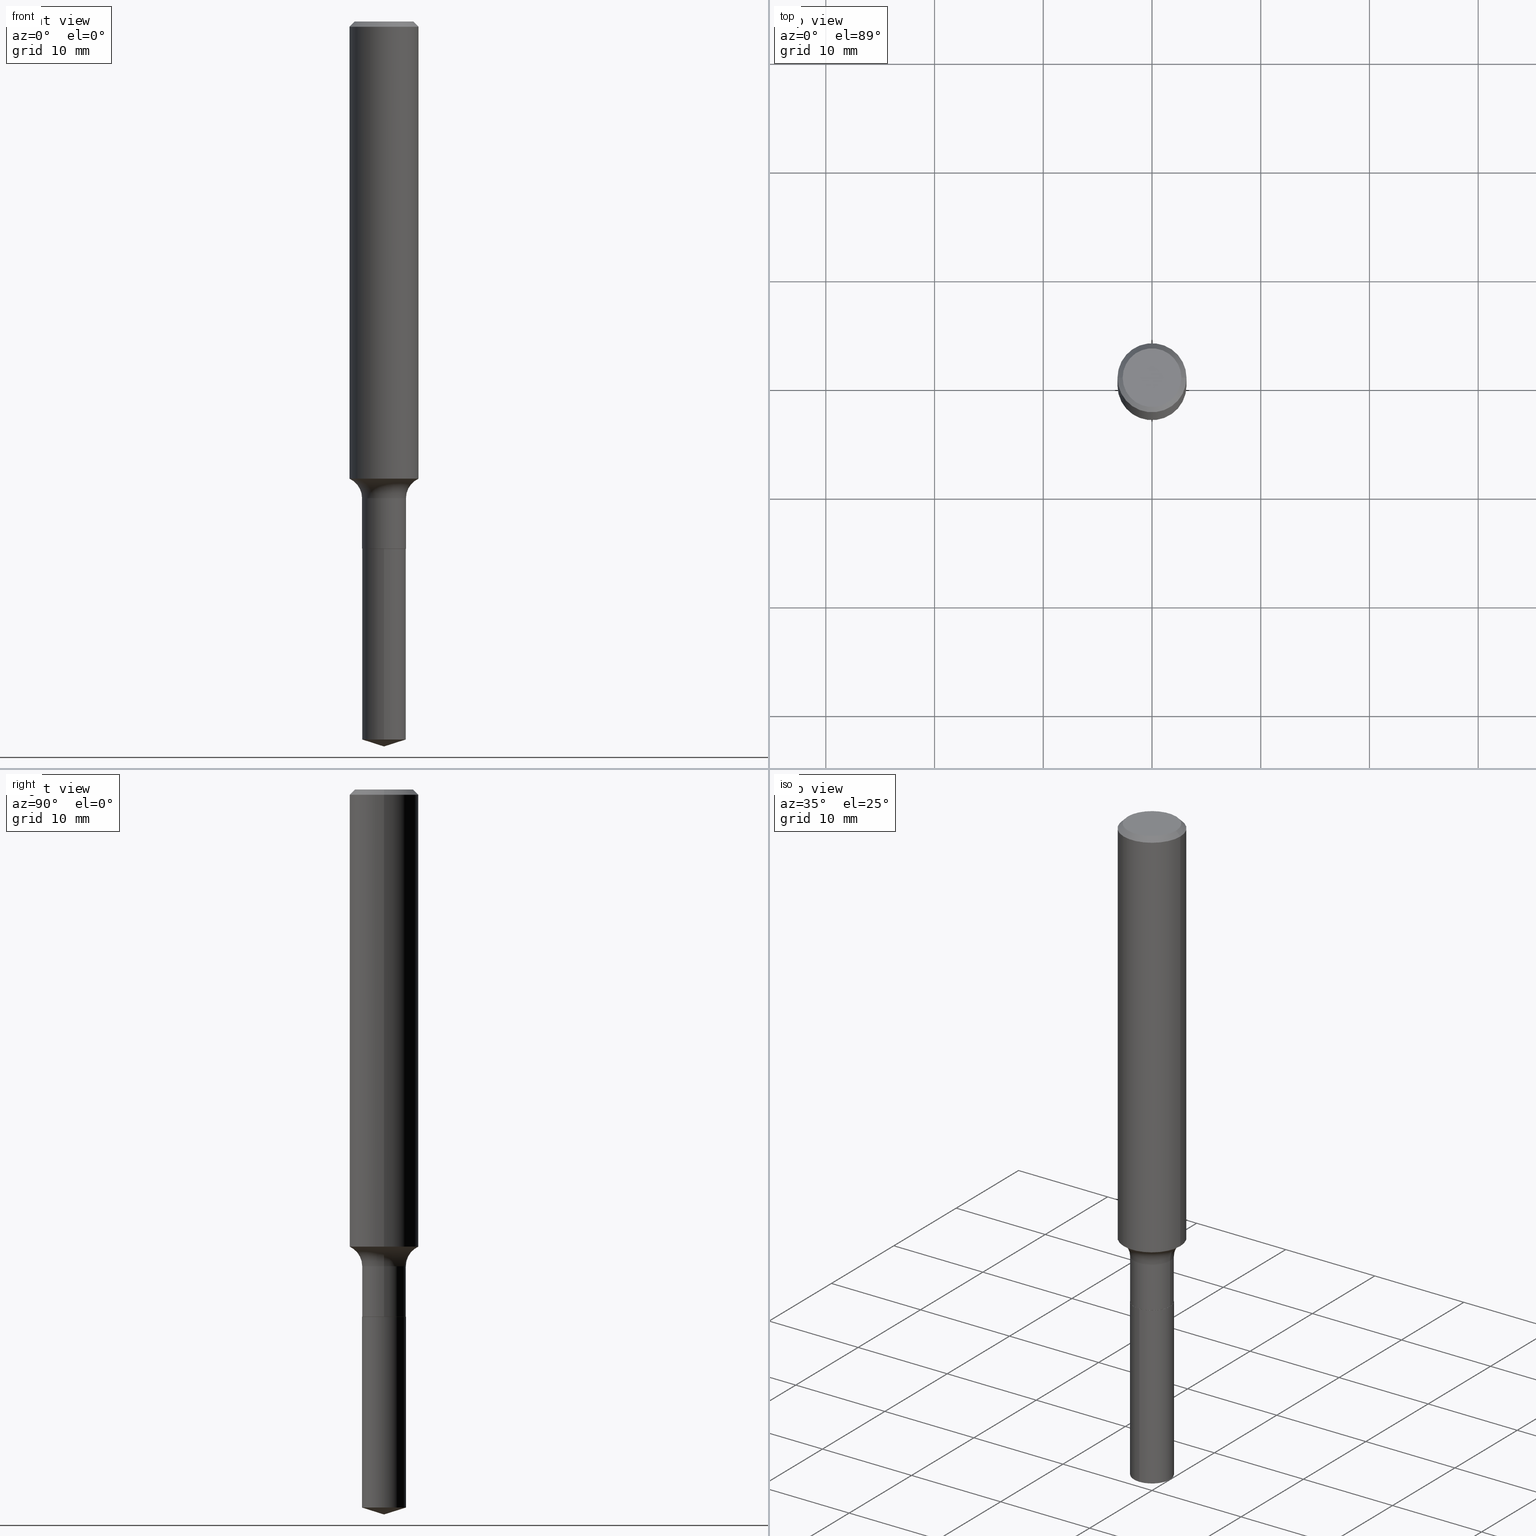
[diagram: canonical four-view strip — front | top / right | iso, engineering-drawing reading convention]
A machine part, canonical four-view strip (front | top / right | iso — engineering-drawing reading convention). The complete STEP part file that produces these views, byte-faithful:
ISO-10303-21;
HEADER;
FILE_DESCRIPTION (( 'STEP AP203' ),
    '1' );
FILE_NAME ('51335.STEP',
    '2024-04-19T12:48:40',
    ( '' ),
    ( '' ),
    'SwSTEP 2.0',
    'SolidWorks 2023',
    '' );
FILE_SCHEMA (( 'CONFIG_CONTROL_DESIGN' ));
ENDSEC;

DATA;
#1 = ORIENTED_EDGE ( 'NONE', *, *, #146, .F. ) ;
#2 = AXIS2_PLACEMENT_3D ( 'NONE', #81, #200, #87 ) ;
#3 = DIRECTION ( 'NONE',  ( 2.445393287563249145E-29, -3.491589485807941180E-15, -1.000000000000000000 ) ) ;
#4 = LOCAL_TIME ( 8, 48, 40.00000000000000000, #197 ) ;
#5 = DIRECTION ( 'NONE',  ( -2.445468806185136597E-29, 3.491481338843145583E-15, 1.000000000000000000 ) ) ;
#6 = APPROVAL ( #31, 'UNSPECIFIED' ) ;
#7 = CALENDAR_DATE ( 2024, 19, 4 ) ;
#8 = DIRECTION ( 'NONE',  ( 2.438088387897960049E-29, -3.491481338843145188E-15, -1.000000000000000000 ) ) ;
#9 = LINE ( 'NONE', #315, #55 ) ;
#10 = CIRCLE ( 'NONE', #396, 0.07950000000000000122 ) ;
#11 = PERSON_AND_ORGANIZATION ( #33, #42 ) ;
#12 = CARTESIAN_POINT ( 'NONE',  ( -1.591006383764329968E-46, 2.271535455632767580E-32, 6.505936120470314915E-18 ) ) ;
#13 = ADVANCED_FACE ( 'NONE', ( #192 ), #96, .T. ) ;
#14 = CARTESIAN_POINT ( 'NONE',  ( -8.985602473711498947E-28, 1.282989370368745665E-13, 36.74507874015748143 ) ) ;
#15 = CC_DESIGN_PERSON_AND_ORGANIZATION_ASSIGNMENT ( #313, #164, ( #336 ) ) ;
#16 = DIRECTION ( 'NONE',  ( 1.000000000000000000, -6.982962677686267499E-15, 0.000000000000000000 ) ) ;
#17 = EDGE_LOOP ( 'NONE', ( #1, #227, #136, #366 ) ) ;
#18 = CIRCLE ( 'NONE', #278, 0.07950000000000000122 ) ;
#19 = CIRCLE ( 'NONE', #421, 0.07950000000000000122 ) ;
#20 = DIRECTION ( 'NONE',  ( -2.445468806185136597E-29, 3.491481338843145583E-15, 1.000000000000000000 ) ) ;
#21 = ORIENTED_EDGE ( 'NONE', *, *, #449, .T. ) ;
#22 = ADVANCED_FACE ( 'NONE', ( #371 ), #486, .F. ) ;
#23 = CARTESIAN_POINT ( 'NONE',  ( 4.221123706356164008E-29, -6.026645938977152856E-15, -1.726099999999999968 ) ) ;
#24 = ORIENTED_EDGE ( 'NONE', *, *, #428, .T. ) ;
#25 = CARTESIAN_POINT ( 'NONE',  ( 0.1062499999999999972, -8.259777185439879685E-16, 6.505936120475796882E-18 ) ) ;
#26 = EDGE_LOOP ( 'NONE', ( #430, #216, #320, #37 ) ) ;
#27 = AXIS2_PLACEMENT_3D ( 'NONE', #335, #459, #382 ) ;
#28 = PLANE ( 'NONE',  #154 ) ;
#29 = ADVANCED_FACE ( 'NONE', ( #76 ), #28, .F. ) ;
#30 =( NAMED_UNIT ( * ) PLANE_ANGLE_UNIT ( ) SI_UNIT ( $, .RADIAN. ) );
#31 = APPROVAL_STATUS ( 'not_yet_approved' ) ;
#32 = LINE ( 'NONE', #485, #326 ) ;
#33 = PERSON ( 'UNSPECIFIED', 'UNSPECIFIED', 'UNSPECIFIED', ('UNSPECIFIED'), ('UNSPECIFIED'), ('UNSPECIFIED') ) ;
#34 = ORIENTED_EDGE ( 'NONE', *, *, #251, .T. ) ;
#35 = LINE ( 'NONE', #180, #328 ) ;
#36 = EDGE_CURVE ( 'NONE', #260, #167, #32, .T. ) ;
#37 = ORIENTED_EDGE ( 'NONE', *, *, #439, .F. ) ;
#38 = COORDINATED_UNIVERSAL_TIME_OFFSET ( 5, 0, .BEHIND. ) ;
#39 = DIRECTION ( 'NONE',  ( -2.445468806185136597E-29, 3.491481338843145583E-15, 1.000000000000000000 ) ) ;
#40 = PERSON_AND_ORGANIZATION ( #33, #42 ) ;
#41 = CARTESIAN_POINT ( 'NONE',  ( 6.419157379853528899E-29, -9.165422400245844660E-15, -2.625000000000000000 ) ) ;
#42 = ORGANIZATION ( 'UNSPECIFIED', 'UNSPECIFIED', '' ) ;
#43 = EDGE_CURVE ( 'NONE', #108, #359, #264, .T. ) ;
#44 = APPROVAL_STATUS ( 'not_yet_approved' ) ;
#45 = CYLINDRICAL_SURFACE ( 'NONE', #334, 0.07950000000000000122 ) ;
#46 = CARTESIAN_POINT ( 'NONE',  ( 4.047723757608193363E-29, -5.779076767913244997E-15, -1.655193371254867873 ) ) ;
#47 = EDGE_CURVE ( 'NONE', #489, #303, #386, .T. ) ;
#48 = DIRECTION ( 'NONE',  ( 1.000000000000000000, -6.982962677686271444E-15, 0.000000000000000000 ) ) ;
#49 = AXIS2_PLACEMENT_3D ( 'NONE', #14, #51, #95 ) ;
#50 = DIRECTION ( 'NONE',  ( -2.445468806185136877E-29, 3.491481338843145188E-15, 1.000000000000000000 ) ) ;
#51 = DIRECTION ( 'NONE',  ( -2.445393287563249425E-29, 3.491589485807941180E-15, 1.000000000000000000 ) ) ;
#52 = VERTEX_POINT ( 'NONE', #106 ) ;
#53 = DIRECTION ( 'NONE',  ( -2.445468806185136597E-29, 3.491481338843145583E-15, 1.000000000000000000 ) ) ;
#54 = ORIENTED_EDGE ( 'NONE', *, *, #414, .T. ) ;
#55 = VECTOR ( 'NONE', #162, 39.37007874015748143 ) ;
#56 = LOCAL_TIME ( 8, 48, 40.00000000000000000, #492 ) ;
#57 = EDGE_CURVE ( 'NONE', #231, #260, #18, .T. ) ;
#58 = DIRECTION ( 'NONE',  ( -2.445468806185136597E-29, 3.491481338843145583E-15, 1.000000000000000000 ) ) ;
#59 = EDGE_LOOP ( 'NONE', ( #363, #482 ) ) ;
#60 = FACE_OUTER_BOUND ( 'NONE', #26, .T. ) ;
#61 = ORIENTED_EDGE ( 'NONE', *, *, #439, .T. ) ;
#62 = LINE ( 'NONE', #74, #312 ) ;
#63 = ADVANCED_FACE ( 'NONE', ( #186 ), #356, .T. ) ;
#64 = ORIENTED_EDGE ( 'NONE', *, *, #152, .T. ) ;
#65 = AXIS2_PLACEMENT_3D ( 'NONE', #12, #346, #85 ) ;
#66 = CONICAL_SURFACE ( 'NONE', #305, 0.07900000000000000078, 0.7853981633975507526 ) ;
#67 = CARTESIAN_POINT ( 'NONE',  ( 0.07900000000000000078, -7.216891927388781321E-15, -1.909000000000000030 ) ) ;
#68 = ORIENTED_EDGE ( 'NONE', *, *, #256, .T. ) ;
#69 = PERSON_AND_ORGANIZATION ( #33, #42 ) ;
#70 = CARTESIAN_POINT ( 'NONE',  ( 4.667177216604333684E-29, -6.663492135182144179E-15, -1.908500000000000085 ) ) ;
#71 = CARTESIAN_POINT ( 'NONE',  ( 4.585254011597163874E-31, -6.546527510330944066E-17, -0.01875000000000013461 ) ) ;
#72 = EDGE_LOOP ( 'NONE', ( #212, #24, #147, #325 ) ) ;
#73 = AXIS2_PLACEMENT_3D ( 'NONE', #342, #383, #165 ) ;
#74 = CARTESIAN_POINT ( 'NONE',  ( -0.1250000000000000000, 8.074050596074738982E-16, -0.01875000000000013461 ) ) ;
#75 = DIRECTION ( 'NONE',  ( 2.445468806185136597E-29, -3.491481338843145583E-15, -1.000000000000000000 ) ) ;
#76 = FACE_OUTER_BOUND ( 'NONE', #448, .T. ) ;
#77 = CARTESIAN_POINT ( 'NONE',  ( 6.419448238266510425E-29, -9.165009495134254950E-15, -2.625000000000000000 ) ) ;
#78 = EDGE_CURVE ( 'NONE', #250, #332, #450, .T. ) ;
#79 = CIRCLE ( 'NONE', #187, 0.07949999999999998734 ) ;
#80 = CC_DESIGN_SECURITY_CLASSIFICATION ( #336, ( #387 ) ) ;
#81 = CARTESIAN_POINT ( 'NONE',  ( 0.1574999999999999456, -7.126462560712738759E-15, -1.726099999999999968 ) ) ;
#82 = APPLICATION_CONTEXT ( 'configuration controlled 3d designs of mechanical parts and assemblies' ) ;
#83 = DATE_TIME_ROLE ( 'creation_date' ) ;
#84 = CARTESIAN_POINT ( 'NONE',  ( -0.1062499999999999972, 7.746724220558198188E-16, 6.505936120465012444E-18 ) ) ;
#85 = DIRECTION ( 'NONE',  ( 1.000000000000000000, -6.982962677686266711E-15, 4.875930095424100059E-29 ) ) ;
#86 = ADVANCED_FACE ( 'NONE', ( #273 ), #240, .F. ) ;
#87 = DIRECTION ( 'NONE',  ( 1.000000000000000000, -6.982962677686264344E-15, 0.000000000000000000 ) ) ;
#88 = AXIS2_PLACEMENT_3D ( 'NONE', #131, #246, #90 ) ;
#89 = CC_DESIGN_APPROVAL ( #109, ( #387 ) ) ;
#90 = DIRECTION ( 'NONE',  ( -6.982962677686265922E-15, -1.000000000000000000, 3.436286784483350005E-15 ) ) ;
#91 = EDGE_LOOP ( 'NONE', ( #394, #170, #21, #54 ) ) ;
#92 = DIRECTION ( 'NONE',  ( 1.000000000000000000, -6.982962677686267499E-15, 4.876176775795935793E-29 ) ) ;
#93 = EDGE_CURVE ( 'NONE', #247, #167, #468, .T. ) ;
#94 = ORIENTED_EDGE ( 'NONE', *, *, #57, .F. ) ;
#95 = DIRECTION ( 'NONE',  ( -6.982962677686265922E-15, -1.000000000000000000, 3.500519750498788051E-15 ) ) ;
#96 = CONICAL_SURFACE ( 'NONE', #395, 0.1250000000000000000, 0.7853981633974447263 ) ;
#97 = ORIENTED_EDGE ( 'NONE', *, *, #193, .T. ) ;
#98 = AXIS2_PLACEMENT_3D ( 'NONE', #284, #433, #322 ) ;
#99 = CIRCLE ( 'NONE', #211, 0.1250000000000000000 ) ;
#100 = CARTESIAN_POINT ( 'NONE',  ( 0.000000000000000000, 0.000000000000000000, 0.000000000000000000 ) ) ;
#101 = VERTEX_POINT ( 'NONE', #124 ) ;
#102 = DIRECTION ( 'NONE',  ( 0.7071067811866199593, -2.468850131083015945E-15, 0.7071067811864750752 ) ) ;
#103 = ORIENTED_EDGE ( 'NONE', *, *, #168, .T. ) ;
#104 = DIRECTION ( 'NONE',  ( -6.659769872151617100E-15, -0.9537169507482246011, 0.3007057995042803356 ) ) ;
#105 = CIRCLE ( 'NONE', #98, 0.1250000000000001943 ) ;
#106 = CARTESIAN_POINT ( 'NONE',  ( -5.551455328760114122E-16, -0.07950000000000666256, -1.908999999999999808 ) ) ;
#107 = LINE ( 'NONE', #67, #381 ) ;
#108 = VERTEX_POINT ( 'NONE', #41 ) ;
#109 = APPROVAL ( #44, 'UNSPECIFIED' ) ;
#110 = LENGTH_MEASURE_WITH_UNIT ( LENGTH_MEASURE( 0.02539999999999999897 ), #365 );
#111 = VERTEX_POINT ( 'NONE', #84 ) ;
#112 = AXIS2_PLACEMENT_3D ( 'NONE', #267, #39, #48 ) ;
#113 = AXIS2_PLACEMENT_3D ( 'NONE', #319, #20, #173 ) ;
#114 = CARTESIAN_POINT ( 'NONE',  ( 4.221123706356164008E-29, -6.026645938977152856E-15, -1.726099999999999968 ) ) ;
#115 = MANIFOLD_SOLID_BREP ( 'Body-Move/Copy2[1]', #233 ) ;
#116 = ADVANCED_FACE ( 'NONE', ( #423 ), #45, .T. ) ;
#117 = PERSON_AND_ORGANIZATION_ROLE ( 'creator' ) ;
#118 = DIRECTION ( 'NONE',  ( -1.000000000000000000, 6.982962677686265922E-15, -4.876176775795935793E-29 ) ) ;
#119 = PRODUCT_RELATED_PRODUCT_CATEGORY ( 'detail', '', ( #331 ) ) ;
#120 = DIRECTION ( 'NONE',  ( -2.445468806185136877E-29, 3.491481338843145188E-15, 1.000000000000000000 ) ) ;
#121 = CLOSED_SHELL ( 'NONE', ( #391, #223, #408, #22, #116, #384, #475, #351, #13, #130, #29, #177 ) ) ;
#122 = APPROVAL_DATE_TIME ( #422, #6 ) ;
#123 = CIRCLE ( 'NONE', #234, 0.07950000000000000122 ) ;
#124 = CARTESIAN_POINT ( 'NONE',  ( 5.648814749293430611E-16, 0.07949999999999091127, -2.599933746284121217 ) ) ;
#125 = DIRECTION ( 'NONE',  ( -2.445393287563249425E-29, 3.491589485807941180E-15, 1.000000000000000000 ) ) ;
#126 = DIRECTION ( 'NONE',  ( -1.000000000000000000, 6.982962677686266711E-15, 0.000000000000000000 ) ) ;
#127 = CARTESIAN_POINT ( 'NONE',  ( 0.1250000000000001110, -8.728703347107841277E-16, 6.095220969744924646E-30 ) ) ;
#128 = AXIS2_PLACEMENT_3D ( 'NONE', #100, #431, #390 ) ;
#129 = VECTOR ( 'NONE', #298, 39.37007874015748143 ) ;
#130 = ADVANCED_FACE ( 'NONE', ( #350 ), #457, .F. ) ;
#131 = CARTESIAN_POINT ( 'NONE',  ( 4.668399951007425925E-29, -6.665237875851565683E-15, -1.909000000000000030 ) ) ;
#132 = ORIENTED_EDGE ( 'NONE', *, *, #338, .F. ) ;
#133 = DIRECTION ( 'NONE',  ( 1.000000000000000000, -6.982962677686266711E-15, 0.000000000000000000 ) ) ;
#134 = ORIENTED_EDGE ( 'NONE', *, *, #138, .T. ) ;
#135 = CARTESIAN_POINT ( 'NONE',  ( -0.1574999999999999456, -4.907541130154996042E-15, -1.726099999999999968 ) ) ;
#136 = ORIENTED_EDGE ( 'NONE', *, *, #36, .T. ) ;
#137 = VECTOR ( 'NONE', #311, 39.37007874015748143 ) ;
#138 = EDGE_CURVE ( 'NONE', #332, #167, #304, .T. ) ;
#139 = LOCAL_TIME ( 8, 48, 40.00000000000000000, #417 ) ;
#140 = DIRECTION ( 'NONE',  ( 0.7071067811865450192, -7.319954787623246579E-15, -0.7071067811865500152 ) ) ;
#141 = APPLICATION_PROTOCOL_DEFINITION ( 'international standard', 'config_control_design', 1994, #82 ) ;
#142 = DIRECTION ( 'NONE',  ( 1.000000000000000000, -6.982962677686268288E-15, 4.883557194083114022E-29 ) ) ;
#143 = FACE_OUTER_BOUND ( 'NONE', #209, .T. ) ;
#144 = CARTESIAN_POINT ( 'NONE',  ( 4.668399951007425925E-29, -6.665237875851565683E-15, -1.909000000000000030 ) ) ;
#145 = CARTESIAN_POINT ( 'NONE',  ( 4.667177216604333684E-29, -6.663492135182144179E-15, -1.908500000000000085 ) ) ;
#146 = EDGE_CURVE ( 'NONE', #231, #247, #202, .T. ) ;
#147 = ORIENTED_EDGE ( 'NONE', *, *, #444, .F. ) ;
#148 = CARTESIAN_POINT ( 'NONE',  ( 0.000000000000000000, 0.000000000000000000, 0.000000000000000000 ) ) ;
#149 = CARTESIAN_POINT ( 'NONE',  ( 6.419157379853528899E-29, -9.165422400245844660E-15, -2.625000000000000000 ) ) ;
#150 = CALENDAR_DATE ( 2024, 19, 4 ) ;
#151 = EDGE_LOOP ( 'NONE', ( #413, #434, #438 ) ) ;
#152 = EDGE_CURVE ( 'NONE', #402, #111, #379, .T. ) ;
#153 = UNCERTAINTY_MEASURE_WITH_UNIT (LENGTH_MEASURE( 1.000000000000000082E-05 ), #226, 'distance_accuracy_value', 'NONE');
#154 = AXIS2_PLACEMENT_3D ( 'NONE', #295, #442, #333 ) ;
#155 = APPROVAL_ROLE ( '' ) ;
#156 = LINE ( 'NONE', #77, #487 ) ;
#157 = PERSON_AND_ORGANIZATION_ROLE ( 'creator' ) ;
#158 = CARTESIAN_POINT ( 'NONE',  ( 4.585254011597163874E-31, -6.546527510330944066E-17, -0.01875000000000013461 ) ) ;
#159 = PERSON_AND_ORGANIZATION_ROLE ( 'design_supplier' ) ;
#160 = CARTESIAN_POINT ( 'NONE',  ( 5.648814749293261992E-16, 0.07949999999999333988, -1.909000000000000252 ) ) ;
#161 = AXIS2_PLACEMENT_3D ( 'NONE', #148, #406, #189 ) ;
#162 = DIRECTION ( 'NONE',  ( -2.445468806185136877E-29, 3.491481338843145188E-15, 1.000000000000000000 ) ) ;
#163 = EDGE_CURVE ( 'NONE', #101, #467, #345, .T. ) ;
#164 = PERSON_AND_ORGANIZATION_ROLE ( 'classification_officer' ) ;
#165 = DIRECTION ( 'NONE',  ( 1.000000000000000000, -6.982962677686267499E-15, 0.000000000000000000 ) ) ;
#166 = CARTESIAN_POINT ( 'NONE',  ( 0.000000000000000000, 0.000000000000000000, 0.000000000000000000 ) ) ;
#167 = VERTEX_POINT ( 'NONE', #198 ) ;
#168 = EDGE_CURVE ( 'NONE', #250, #253, #9, .T. ) ;
#169 = CYLINDRICAL_SURFACE ( 'NONE', #235, 0.07950000000000000122 ) ;
#170 = ORIENTED_EDGE ( 'NONE', *, *, #369, .F. ) ;
#171 = LOCAL_TIME ( 8, 48, 40.00000000000000000, #310 ) ;
#172 = CC_DESIGN_DATE_AND_TIME_ASSIGNMENT ( #194, #199, ( #336 ) ) ;
#173 = DIRECTION ( 'NONE',  ( 1.000000000000000000, -6.982962677686266711E-15, 4.876176775795935232E-29 ) ) ;
#174 = ORIENTED_EDGE ( 'NONE', *, *, #460, .T. ) ;
#175 = DIRECTION ( 'NONE',  ( -2.445468806185136597E-29, 3.491481338843145583E-15, 1.000000000000000000 ) ) ;
#176 = CYLINDRICAL_SURFACE ( 'NONE', #113, 0.1250000000000001110 ) ;
#177 = ADVANCED_FACE ( 'NONE', ( #314 ), #270, .T. ) ;
#178 = EDGE_LOOP ( 'NONE', ( #452, #339, #68, #290 ) ) ;
#179 = AXIS2_PLACEMENT_3D ( 'NONE', #114, #183, #142 ) ;
#180 = CARTESIAN_POINT ( 'NONE',  ( -5.551455328760114122E-16, -0.07950000000000666256, -1.908999999999999808 ) ) ;
#181 = ORIENTED_EDGE ( 'NONE', *, *, #465, .F. ) ;
#182 = CARTESIAN_POINT ( 'NONE',  ( 4.668399951007425925E-29, -6.665237875851565683E-15, -1.909000000000000030 ) ) ;
#183 = DIRECTION ( 'NONE',  ( -2.445468806185136597E-29, 3.491481338843145583E-15, 1.000000000000000000 ) ) ;
#184 = PRODUCT_DEFINITION ( 'UNKNOWN', '', #387, #454 ) ;
#185 = PERSON_AND_ORGANIZATION ( #33, #42 ) ;
#186 = FACE_OUTER_BOUND ( 'NONE', #302, .T. ) ;
#187 = AXIS2_PLACEMENT_3D ( 'NONE', #23, #53, #16 ) ;
#188 = AXIS2_PLACEMENT_3D ( 'NONE', #182, #481, #224 ) ;
#189 = DIRECTION ( 'NONE',  ( 1.000000000000000000, 0.000000000000000000, 0.000000000000000000 ) ) ;
#190 = ORIENTED_EDGE ( 'NONE', *, *, #269, .F. ) ;
#191 =( NAMED_UNIT ( * ) SI_UNIT ( $, .STERADIAN. ) SOLID_ANGLE_UNIT ( ) );
#192 = FACE_OUTER_BOUND ( 'NONE', #91, .T. ) ;
#193 = EDGE_CURVE ( 'NONE', #108, #101, #156, .T. ) ;
#194 = DATE_AND_TIME ( #347, #171 ) ;
#195 = CARTESIAN_POINT ( 'NONE',  ( 4.668399951007425925E-29, -6.665237875851565683E-15, -1.909000000000000030 ) ) ;
#196 = CIRCLE ( 'NONE', #258, 0.1062499999999999972 ) ;
#197 = COORDINATED_UNIVERSAL_TIME_OFFSET ( 5, 0, .BEHIND. ) ;
#198 = CARTESIAN_POINT ( 'NONE',  ( 0.07949999999999998734, -6.581791471853211501E-15, -1.726099999999999968 ) ) ;
#199 = DATE_TIME_ROLE ( 'classification_date' ) ;
#200 = DIRECTION ( 'NONE',  ( -6.982962677686266711E-15, -1.000000000000000000, 3.491481338843145583E-15 ) ) ;
#201 = CC_DESIGN_PERSON_AND_ORGANIZATION_ASSIGNMENT ( #185, #490, ( #331 ) ) ;
#202 = LINE ( 'NONE', #348, #370 ) ;
#203 = CALENDAR_DATE ( 2024, 19, 4 ) ;
#204 = VECTOR ( 'NONE', #50, 39.37007874015748143 ) ;
#205 = FACE_OUTER_BOUND ( 'NONE', #292, .T. ) ;
#206 = FACE_OUTER_BOUND ( 'NONE', #151, .T. ) ;
#207 = EDGE_CURVE ( 'NONE', #52, #467, #343, .T. ) ;
#208 = LINE ( 'NONE', #127, #204 ) ;
#209 = EDGE_LOOP ( 'NONE', ( #416, #432, #134, #286 ) ) ;
#210 = CARTESIAN_POINT ( 'NONE',  ( 6.358004696321542877E-29, -9.077694879767091287E-15, -2.599933746284120328 ) ) ;
#211 = AXIS2_PLACEMENT_3D ( 'NONE', #71, #443, #261 ) ;
#212 = ORIENTED_EDGE ( 'NONE', *, *, #465, .T. ) ;
#213 = DIRECTION ( 'NONE',  ( 1.000000000000000000, -6.982962677686266711E-15, 4.875930095424100059E-29 ) ) ;
#214 = ORIENTED_EDGE ( 'NONE', *, *, #460, .F. ) ;
#215 = DIRECTION ( 'NONE',  ( -2.445468806185136597E-29, 3.491481338843145583E-15, 1.000000000000000000 ) ) ;
#216 = ORIENTED_EDGE ( 'NONE', *, *, #163, .T. ) ;
#217 = CARTESIAN_POINT ( 'NONE',  ( -0.07900000000000000078, -6.101259887426974836E-15, -1.909000000000000030 ) ) ;
#218 = EDGE_LOOP ( 'NONE', ( #254, #103, #214, #361 ) ) ;
#219 = AXIS2_PLACEMENT_3D ( 'NONE', #158, #309, #126 ) ;
#220 = CIRCLE ( 'NONE', #349, 0.1250000000000000000 ) ;
#221 = APPLICATION_CONTEXT ( 'configuration controlled 3d designs of mechanical parts and assemblies' ) ;
#222 = ORIENTED_EDGE ( 'NONE', *, *, #344, .T. ) ;
#223 = ADVANCED_FACE ( 'NONE', ( #205 ), #248, .T. ) ;
#224 = DIRECTION ( 'NONE',  ( 1.000000000000000000, -6.982962677686271444E-15, 0.000000000000000000 ) ) ;
#225 = DIRECTION ( 'NONE',  ( -2.445468806185136597E-29, 3.491481338843145583E-15, 1.000000000000000000 ) ) ;
#226 =( CONVERSION_BASED_UNIT ( 'INCH', #110 ) LENGTH_UNIT ( ) NAMED_UNIT ( #451 ) );
#227 = ORIENTED_EDGE ( 'NONE', *, *, #57, .T. ) ;
#228 = ADVANCED_FACE ( 'NONE', ( #277 ), #426, .T. ) ;
#229 = DIRECTION ( 'NONE',  ( 1.000000000000000000, -6.982962677686265922E-15, 0.000000000000000000 ) ) ;
#230 = ORIENTED_EDGE ( 'NONE', *, *, #36, .F. ) ;
#231 = VERTEX_POINT ( 'NONE', #268 ) ;
#232 = CARTESIAN_POINT ( 'NONE',  ( 0.000000000000000000, 0.000000000000000000, 0.000000000000000000 ) ) ;
#233 = CLOSED_SHELL ( 'NONE', ( #285, #63, #355, #228, #86 ) ) ;
#234 = AXIS2_PLACEMENT_3D ( 'NONE', #291, #280, #470 ) ;
#235 = AXIS2_PLACEMENT_3D ( 'NONE', #166, #175, #92 ) ;
#236 = CARTESIAN_POINT ( 'NONE',  ( -0.07949999999999998734, -5.780187562150368763E-15, -1.726099999999999968 ) ) ;
#237 = CC_DESIGN_DATE_AND_TIME_ASSIGNMENT ( #274, #83, ( #184 ) ) ;
#238 = SHAPE_DEFINITION_REPRESENTATION ( #296, #239 ) ;
#239 = ADVANCED_BREP_SHAPE_REPRESENTATION ( '51335', ( #115, #283, #161 ), #478 ) ;
#240 = PLANE ( 'NONE',  #420 ) ;
#241 = DIRECTION ( 'NONE',  ( 6.982962677686265922E-15, 1.000000000000000000, -3.491589485807941180E-15 ) ) ;
#242 = AXIS2_PLACEMENT_3D ( 'NONE', #46, #5, #378 ) ;
#243 = DIRECTION ( 'NONE',  ( -2.445393287563249425E-29, 3.491589485807941180E-15, 1.000000000000000000 ) ) ;
#244 = DIRECTION ( 'NONE',  ( -2.445393287563249425E-29, 3.491589485807941180E-15, 1.000000000000000000 ) ) ;
#245 = ORIENTED_EDGE ( 'NONE', *, *, #146, .T. ) ;
#246 = DIRECTION ( 'NONE',  ( -2.445393287563249425E-29, 3.491589485807941180E-15, 1.000000000000000000 ) ) ;
#247 = VERTEX_POINT ( 'NONE', #236 ) ;
#248 = CONICAL_SURFACE ( 'NONE', #219, 0.1250000000000000000, 0.7853981633974447263 ) ;
#249 = DIRECTION ( 'NONE',  ( -2.445468806185136597E-29, 3.491481338843145583E-15, 1.000000000000000000 ) ) ;
#250 = VERTEX_POINT ( 'NONE', #419 ) ;
#251 = EDGE_CURVE ( 'NONE', #402, #480, #282, .T. ) ;
#252 = CARTESIAN_POINT ( 'NONE',  ( -0.1250000000000000000, -2.034092601808150261E-15, -0.01875000000000013461 ) ) ;
#253 = VERTEX_POINT ( 'NONE', #252 ) ;
#254 = ORIENTED_EDGE ( 'NONE', *, *, #276, .T. ) ;
#255 = DIRECTION ( 'NONE',  ( -2.445468806185136597E-29, 3.491481338843145583E-15, 1.000000000000000000 ) ) ;
#256 = EDGE_CURVE ( 'NONE', #332, #480, #208, .T. ) ;
#257 = ORIENTED_EDGE ( 'NONE', *, *, #47, .T. ) ;
#258 = AXIS2_PLACEMENT_3D ( 'NONE', #429, #249, #213 ) ;
#259 = LOCAL_TIME ( 8, 48, 40.00000000000000000, #38 ) ;
#260 = VERTEX_POINT ( 'NONE', #360 ) ;
#261 = DIRECTION ( 'NONE',  ( 1.000000000000000000, -6.982962677686266711E-15, 0.000000000000000000 ) ) ;
#262 = ORIENTED_EDGE ( 'NONE', *, *, #93, .T. ) ;
#263 = APPLICATION_PROTOCOL_DEFINITION ( 'international standard', 'config_control_design', 1994, #221 ) ;
#264 = LINE ( 'NONE', #149, #427 ) ;
#265 = ORIENTED_EDGE ( 'NONE', *, *, #293, .F. ) ;
#266 = PERSON_AND_ORGANIZATION ( #33, #42 ) ;
#267 = CARTESIAN_POINT ( 'NONE',  ( 4.668399951007425925E-29, -6.665237875851565683E-15, -1.909000000000000030 ) ) ;
#268 = CARTESIAN_POINT ( 'NONE',  ( -0.07950000000000000122, -5.780187562150368763E-15, -1.908500000000000085 ) ) ;
#269 = EDGE_CURVE ( 'NONE', #359, #101, #123, .T. ) ;
#270 = CONICAL_SURFACE ( 'NONE', #112, 0.07900000000000000078, 0.7853981633975507526 ) ;
#271 = CIRCLE ( 'NONE', #469, 0.07799999999999993050 ) ;
#272 = SECURITY_CLASSIFICATION_LEVEL ( 'unclassified' ) ;
#273 = FACE_OUTER_BOUND ( 'NONE', #59, .T. ) ;
#274 = DATE_AND_TIME ( #7, #259 ) ;
#275 = CARTESIAN_POINT ( 'NONE',  ( 4.668399951007425925E-29, -6.665237875851565683E-15, -1.909000000000000030 ) ) ;
#276 = EDGE_CURVE ( 'NONE', #332, #250, #105, .T. ) ;
#277 = FACE_OUTER_BOUND ( 'NONE', #446, .T. ) ;
#278 = AXIS2_PLACEMENT_3D ( 'NONE', #70, #225, #368 ) ;
#279 = APPROVAL_PERSON_ORGANIZATION ( #69, #6, #488 ) ;
#280 = DIRECTION ( 'NONE',  ( -2.445393287563249425E-29, 3.491589485807941180E-15, 1.000000000000000000 ) ) ;
#281 = EDGE_LOOP ( 'NONE', ( #471, #245, #132, #230 ) ) ;
#282 = LINE ( 'NONE', #479, #364 ) ;
#283 = MANIFOLD_SOLID_BREP ( 'Body-Move/Copy2[2]', #121 ) ;
#284 = CARTESIAN_POINT ( 'NONE',  ( 4.047723757608193363E-29, -5.779076767913244997E-15, -1.655193371254867873 ) ) ;
#285 = ADVANCED_FACE ( 'NONE', ( #60 ), #399, .T. ) ;
#286 = ORIENTED_EDGE ( 'NONE', *, *, #338, .T. ) ;
#287 = CONICAL_SURFACE ( 'NONE', #49, 124.8659371009120775, 1.265363707695884798 ) ;
#288 = DIRECTION ( 'NONE',  ( -1.000000000000000000, 7.105427357601005014E-15, 0.000000000000000000 ) ) ;
#289 = TOROIDAL_SURFACE ( 'NONE', #372, 0.1574999999999999456, 0.07799999999999993050 ) ;
#290 = ORIENTED_EDGE ( 'NONE', *, *, #414, .F. ) ;
#291 = CARTESIAN_POINT ( 'NONE',  ( 6.358004696321542877E-29, -9.077694879767091287E-15, -2.599933746284120328 ) ) ;
#292 = EDGE_LOOP ( 'NONE', ( #300, #34, #174, #367 ) ) ;
#293 = EDGE_CURVE ( 'NONE', #467, #52, #10, .T. ) ;
#294 = DIRECTION ( 'NONE',  ( 1.000000000000000000, -6.982962677686268288E-15, 4.883557194083114022E-29 ) ) ;
#295 = CARTESIAN_POINT ( 'NONE',  ( 4.668399951007425925E-29, -6.665237875851565683E-15, -1.909000000000000030 ) ) ;
#296 = PRODUCT_DEFINITION_SHAPE ( 'NONE', 'NONE',  #184 ) ;
#297 = CC_DESIGN_PERSON_AND_ORGANIZATION_ASSIGNMENT ( #308, #117, ( #387 ) ) ;
#298 = DIRECTION ( 'NONE',  ( -0.7071067811866199593, 7.493145998870616062E-15, 0.7071067811864750752 ) ) ;
#299 = DIRECTION ( 'NONE',  ( -2.445468806185136597E-29, 3.491481338843145583E-15, 1.000000000000000000 ) ) ;
#300 = ORIENTED_EDGE ( 'NONE', *, *, #152, .F. ) ;
#301 = LINE ( 'NONE', #337, #129 ) ;
#302 = EDGE_LOOP ( 'NONE', ( #400, #97, #190 ) ) ;
#303 = VERTEX_POINT ( 'NONE', #316 ) ;
#304 = CIRCLE ( 'NONE', #2, 0.07799999999999993050 ) ;
#305 = AXIS2_PLACEMENT_3D ( 'NONE', #474, #58, #437 ) ;
#306 = CALENDAR_DATE ( 2024, 19, 4 ) ;
#307 = DIRECTION ( 'NONE',  ( -2.445393287563249425E-29, 3.491589485807941180E-15, 1.000000000000000000 ) ) ;
#308 = PERSON_AND_ORGANIZATION ( #33, #42 ) ;
#309 = DIRECTION ( 'NONE',  ( 2.445468806185136597E-29, -3.491481338843145583E-15, -1.000000000000000000 ) ) ;
#310 = COORDINATED_UNIVERSAL_TIME_OFFSET ( 5, 0, .BEHIND. ) ;
#311 = DIRECTION ( 'NONE',  ( -2.445393287563249425E-29, 3.491589485807941180E-15, 1.000000000000000000 ) ) ;
#312 = VECTOR ( 'NONE', #330, 39.37007874015748143 ) ;
#313 = PERSON_AND_ORGANIZATION ( #33, #42 ) ;
#314 = FACE_OUTER_BOUND ( 'NONE', #392, .T. ) ;
#315 = CARTESIAN_POINT ( 'NONE',  ( -0.1250000000000001110, 8.881784197001260212E-16, -6.148668862818637832E-30 ) ) ;
#316 = CARTESIAN_POINT ( 'NONE',  ( 0.07900000000000000078, -7.216891927388781321E-15, -1.909000000000000030 ) ) ;
#317 = AXIS2_PLACEMENT_3D ( 'NONE', #275, #125, #425 ) ;
#318 = APPROVAL_PERSON_ORGANIZATION ( #11, #388, #155 ) ;
#319 = CARTESIAN_POINT ( 'NONE',  ( 0.000000000000000000, 0.000000000000000000, 0.000000000000000000 ) ) ;
#320 = ORIENTED_EDGE ( 'NONE', *, *, #207, .F. ) ;
#321 = CC_DESIGN_PERSON_AND_ORGANIZATION_ASSIGNMENT ( #455, #157, ( #184 ) ) ;
#322 = DIRECTION ( 'NONE',  ( 1.000000000000000000, -6.982962677686267499E-15, 0.000000000000000000 ) ) ;
#323 = ORIENTED_EDGE ( 'NONE', *, *, #376, .T. ) ;
#324 = FACE_OUTER_BOUND ( 'NONE', #72, .T. ) ;
#325 = ORIENTED_EDGE ( 'NONE', *, *, #483, .F. ) ;
#326 = VECTOR ( 'NONE', #491, 39.37007874015748143 ) ;
#327 = DIRECTION ( 'NONE',  ( -6.982962677686265922E-15, -1.000000000000000000, 3.436286784483350005E-15 ) ) ;
#328 = VECTOR ( 'NONE', #411, 39.37007874015748143 ) ;
#329 = ORIENTED_EDGE ( 'NONE', *, *, #78, .F. ) ;
#330 = DIRECTION ( 'NONE',  ( -0.7071067811865450192, 2.468850131082230634E-15, -0.7071067811865500152 ) ) ;
#331 = PRODUCT ( '51335', '51335', '', ( #484 ) ) ;
#332 = VERTEX_POINT ( 'NONE', #440 ) ;
#333 = DIRECTION ( 'NONE',  ( 1.000000000000000000, -6.982962677686265922E-15, 4.876176775795935793E-29 ) ) ;
#334 = AXIS2_PLACEMENT_3D ( 'NONE', #232, #464, #385 ) ;
#335 = CARTESIAN_POINT ( 'NONE',  ( -8.985602473711498947E-28, 1.282989370368745665E-13, 36.74507874015748143 ) ) ;
#336 = SECURITY_CLASSIFICATION ( '', '', #272 ) ;
#337 = CARTESIAN_POINT ( 'NONE',  ( -0.07900000000000000078, -6.103909114601086037E-15, -1.909000000000000030 ) ) ;
#338 = EDGE_CURVE ( 'NONE', #167, #247, #79, .T. ) ;
#339 = ORIENTED_EDGE ( 'NONE', *, *, #78, .T. ) ;
#340 = CARTESIAN_POINT ( 'NONE',  ( 4.585254011597163874E-31, -6.546527510330944066E-17, -0.01875000000000013461 ) ) ;
#341 = APPROVAL_STATUS ( 'not_yet_approved' ) ;
#342 = CARTESIAN_POINT ( 'NONE',  ( 4.221123706356164008E-29, -6.026645938977152856E-15, -1.726099999999999968 ) ) ;
#343 = CIRCLE ( 'NONE', #317, 0.07950000000000000122 ) ;
#344 = EDGE_CURVE ( 'NONE', #101, #359, #461, .T. ) ;
#345 = LINE ( 'NONE', #160, #137 ) ;
#346 = DIRECTION ( 'NONE',  ( -2.445468806185136597E-29, 3.491481338843145583E-15, 1.000000000000000000 ) ) ;
#347 = CALENDAR_DATE ( 2024, 19, 4 ) ;
#348 = CARTESIAN_POINT ( 'NONE',  ( -0.07950000000000000122, 5.648814749292796564E-16, -3.910553396752650127E-30 ) ) ;
#349 = AXIS2_PLACEMENT_3D ( 'NONE', #472, #215, #133 ) ;
#350 = FACE_OUTER_BOUND ( 'NONE', #407, .T. ) ;
#351 = ADVANCED_FACE ( 'NONE', ( #362 ), #352, .T. ) ;
#352 = CYLINDRICAL_SURFACE ( 'NONE', #128, 0.1250000000000001110 ) ;
#353 = FACE_OUTER_BOUND ( 'NONE', #17, .T. ) ;
#354 = ORIENTED_EDGE ( 'NONE', *, *, #483, .T. ) ;
#355 = ADVANCED_FACE ( 'NONE', ( #206 ), #287, .T. ) ;
#356 = CONICAL_SURFACE ( 'NONE', #27, 124.8659371009120775, 1.265363707695884798 ) ;
#357 = CC_DESIGN_APPROVAL ( #388, ( #336 ) ) ;
#358 = FACE_OUTER_BOUND ( 'NONE', #218, .T. ) ;
#359 = VERTEX_POINT ( 'NONE', #466 ) ;
#360 = CARTESIAN_POINT ( 'NONE',  ( 0.07950000000000000122, -7.218637668058202036E-15, -1.908500000000000085 ) ) ;
#361 = ORIENTED_EDGE ( 'NONE', *, *, #256, .F. ) ;
#362 = FACE_OUTER_BOUND ( 'NONE', #178, .T. ) ;
#363 = ORIENTED_EDGE ( 'NONE', *, *, #207, .T. ) ;
#364 = VECTOR ( 'NONE', #140, 39.37007874015748143 ) ;
#365 =( LENGTH_UNIT ( ) NAMED_UNIT ( * ) SI_UNIT ( $, .METRE. ) );
#366 = ORIENTED_EDGE ( 'NONE', *, *, #93, .F. ) ;
#367 = ORIENTED_EDGE ( 'NONE', *, *, #449, .F. ) ;
#368 = DIRECTION ( 'NONE',  ( 1.000000000000000000, -6.982962677686265922E-15, 0.000000000000000000 ) ) ;
#369 = EDGE_CURVE ( 'NONE', #111, #402, #196, .T. ) ;
#370 = VECTOR ( 'NONE', #120, 39.37007874015748143 ) ;
#371 = FACE_OUTER_BOUND ( 'NONE', #373, .T. ) ;
#372 = AXIS2_PLACEMENT_3D ( 'NONE', #409, #447, #294 ) ;
#373 = EDGE_LOOP ( 'NONE', ( #329, #323, #262, #473 ) ) ;
#374 = APPROVAL_ROLE ( '' ) ;
#375 = CARTESIAN_POINT ( 'NONE',  ( 4.668399951007425925E-29, -6.665237875851565683E-15, -1.909000000000000030 ) ) ;
#376 = EDGE_CURVE ( 'NONE', #250, #247, #271, .T. ) ;
#377 = APPROVAL_DATE_TIME ( #415, #109 ) ;
#378 = DIRECTION ( 'NONE',  ( 1.000000000000000000, -6.982962677686267499E-15, 0.000000000000000000 ) ) ;
#379 = CIRCLE ( 'NONE', #65, 0.1062499999999999972 ) ;
#380 = AXIS2_PLACEMENT_3D ( 'NONE', #375, #307, #418 ) ;
#381 = VECTOR ( 'NONE', #102, 39.37007874015748143 ) ;
#382 = DIRECTION ( 'NONE',  ( -6.982962677686265922E-15, -1.000000000000000000, 3.500519750498788051E-15 ) ) ;
#383 = DIRECTION ( 'NONE',  ( -2.445468806185136597E-29, 3.491481338843145583E-15, 1.000000000000000000 ) ) ;
#384 = ADVANCED_FACE ( 'NONE', ( #353 ), #169, .T. ) ;
#385 = DIRECTION ( 'NONE',  ( 1.000000000000000000, -6.982962677686267499E-15, 4.876176775795935793E-29 ) ) ;
#386 = CIRCLE ( 'NONE', #435, 0.07900000000000000078 ) ;
#387 = PRODUCT_DEFINITION_FORMATION_WITH_SPECIFIED_SOURCE ( 'ANY', '', #331, .NOT_KNOWN. ) ;
#388 = APPROVAL ( #341, 'UNSPECIFIED' ) ;
#389 = DIRECTION ( 'NONE',  ( -6.982962677686265922E-15, -1.000000000000000000, 6.872573568966700010E-15 ) ) ;
#390 = DIRECTION ( 'NONE',  ( 1.000000000000000000, -6.982962677686266711E-15, 4.876176775795935232E-29 ) ) ;
#391 = ADVANCED_FACE ( 'NONE', ( #324 ), #66, .T. ) ;
#392 = EDGE_LOOP ( 'NONE', ( #476, #257, #354, #94 ) ) ;
#393 = CARTESIAN_POINT ( 'NONE',  ( 4.668399951007425925E-29, -6.665237875851565683E-15, -1.909000000000000030 ) ) ;
#394 = ORIENTED_EDGE ( 'NONE', *, *, #251, .F. ) ;
#395 = AXIS2_PLACEMENT_3D ( 'NONE', #340, #75, #410 ) ;
#396 = AXIS2_PLACEMENT_3D ( 'NONE', #393, #244, #327 ) ;
#397 = DIRECTION ( 'NONE',  ( 7.105427357601001859E-15, 1.000000000000000000, -3.491481338843145583E-15 ) ) ;
#398 = ORIENTED_EDGE ( 'NONE', *, *, #163, .F. ) ;
#399 = CYLINDRICAL_SURFACE ( 'NONE', #88, 0.07950000000000000122 ) ;
#400 = ORIENTED_EDGE ( 'NONE', *, *, #43, .F. ) ;
#401 = CARTESIAN_POINT ( 'NONE',  ( 0.1250000000000000000, -9.383356098140928781E-16, -0.01875000000000013461 ) ) ;
#402 = VERTEX_POINT ( 'NONE', #25 ) ;
#403 = CARTESIAN_POINT ( 'NONE',  ( 5.648814749293433570E-16, 0.07949999999999333988, -1.909000000000000252 ) ) ;
#404 = CIRCLE ( 'NONE', #188, 0.07900000000000000078 ) ;
#405 = ORIENTED_EDGE ( 'NONE', *, *, #369, .T. ) ;
#406 = DIRECTION ( 'NONE',  ( 0.000000000000000000, 0.000000000000000000, 1.000000000000000000 ) ) ;
#407 = EDGE_LOOP ( 'NONE', ( #405, #64 ) ) ;
#408 = ADVANCED_FACE ( 'NONE', ( #358 ), #176, .T. ) ;
#409 = CARTESIAN_POINT ( 'NONE',  ( 4.221123706356164008E-29, -6.026645938977152856E-15, -1.726099999999999968 ) ) ;
#410 = DIRECTION ( 'NONE',  ( -1.000000000000000000, 6.982962677686266711E-15, 0.000000000000000000 ) ) ;
#411 = DIRECTION ( 'NONE',  ( -2.445393287563249425E-29, 3.491589485807941180E-15, 1.000000000000000000 ) ) ;
#412 = AXIS2_PLACEMENT_3D ( 'NONE', #456, #8, #118 ) ;
#413 = ORIENTED_EDGE ( 'NONE', *, *, #193, .F. ) ;
#414 = EDGE_CURVE ( 'NONE', #253, #480, #220, .T. ) ;
#415 = DATE_AND_TIME ( #306, #4 ) ;
#416 = ORIENTED_EDGE ( 'NONE', *, *, #376, .F. ) ;
#417 = COORDINATED_UNIVERSAL_TIME_OFFSET ( 5, 0, .BEHIND. ) ;
#418 = DIRECTION ( 'NONE',  ( -6.982962677686265922E-15, -1.000000000000000000, 3.436286784483350005E-15 ) ) ;
#419 = CARTESIAN_POINT ( 'NONE',  ( -0.1250000000000001665, -4.890898348213118976E-15, -1.655193371254867873 ) ) ;
#420 = AXIS2_PLACEMENT_3D ( 'NONE', #195, #3, #241 ) ;
#421 = AXIS2_PLACEMENT_3D ( 'NONE', #145, #255, #229 ) ;
#422 = DATE_AND_TIME ( #150, #56 ) ;
#423 = FACE_OUTER_BOUND ( 'NONE', #281, .T. ) ;
#424 = APPROVAL_DATE_TIME ( #458, #388 ) ;
#425 = DIRECTION ( 'NONE',  ( -6.982962677686265922E-15, -1.000000000000000000, 3.436286784483350005E-15 ) ) ;
#426 = CYLINDRICAL_SURFACE ( 'NONE', #380, 0.07950000000000000122 ) ;
#427 = VECTOR ( 'NONE', #104, 39.37007874015748854 ) ;
#428 = EDGE_CURVE ( 'NONE', #489, #231, #301, .T. ) ;
#429 = CARTESIAN_POINT ( 'NONE',  ( -1.591006383764329968E-46, 2.271535455632767580E-32, 6.505936120470314915E-18 ) ) ;
#430 = ORIENTED_EDGE ( 'NONE', *, *, #269, .T. ) ;
#431 = DIRECTION ( 'NONE',  ( -2.445468806185136597E-29, 3.491481338843145583E-15, 1.000000000000000000 ) ) ;
#432 = ORIENTED_EDGE ( 'NONE', *, *, #276, .F. ) ;
#433 = DIRECTION ( 'NONE',  ( -2.445468806185136597E-29, 3.491481338843145583E-15, 1.000000000000000000 ) ) ;
#434 = ORIENTED_EDGE ( 'NONE', *, *, #43, .T. ) ;
#435 = AXIS2_PLACEMENT_3D ( 'NONE', #144, #299, #445 ) ;
#436 = APPROVAL_PERSON_ORGANIZATION ( #40, #109, #374 ) ;
#437 = DIRECTION ( 'NONE',  ( 1.000000000000000000, -6.982962677686271444E-15, 0.000000000000000000 ) ) ;
#438 = ORIENTED_EDGE ( 'NONE', *, *, #344, .F. ) ;
#439 = EDGE_CURVE ( 'NONE', #359, #52, #35, .T. ) ;
#440 = CARTESIAN_POINT ( 'NONE',  ( 0.1250000000000001665, -6.651947102624029913E-15, -1.655193371254867873 ) ) ;
#441 = ORIENTED_EDGE ( 'NONE', *, *, #47, .F. ) ;
#442 = DIRECTION ( 'NONE',  ( -2.438088387897960049E-29, 3.491481338843145188E-15, 1.000000000000000000 ) ) ;
#443 = DIRECTION ( 'NONE',  ( -2.445468806185136597E-29, 3.491481338843145583E-15, 1.000000000000000000 ) ) ;
#444 = EDGE_CURVE ( 'NONE', #260, #231, #19, .T. ) ;
#445 = DIRECTION ( 'NONE',  ( 1.000000000000000000, -6.982962677686271444E-15, 0.000000000000000000 ) ) ;
#446 = EDGE_LOOP ( 'NONE', ( #398, #222, #61, #265 ) ) ;
#447 = DIRECTION ( 'NONE',  ( -2.445468806185136597E-29, 3.491481338843145583E-15, 1.000000000000000000 ) ) ;
#448 = EDGE_LOOP ( 'NONE', ( #181, #441 ) ) ;
#449 = EDGE_CURVE ( 'NONE', #111, #253, #62, .T. ) ;
#450 = CIRCLE ( 'NONE', #242, 0.1250000000000001943 ) ;
#451 = DIMENSIONAL_EXPONENTS ( 1.000000000000000000, 0.000000000000000000, 0.000000000000000000, 0.000000000000000000, 0.000000000000000000, 0.000000000000000000, 0.000000000000000000 ) ;
#452 = ORIENTED_EDGE ( 'NONE', *, *, #168, .F. ) ;
#453 = CC_DESIGN_APPROVAL ( #6, ( #184 ) ) ;
#454 = DESIGN_CONTEXT ( 'detailed design', #221, 'design' ) ;
#455 = PERSON_AND_ORGANIZATION ( #33, #42 ) ;
#456 = CARTESIAN_POINT ( 'NONE',  ( -7.955031918821649840E-47, 1.135767727816383790E-32, 3.252968060235157457E-18 ) ) ;
#457 = PLANE ( 'NONE',  #412 ) ;
#458 = DATE_AND_TIME ( #203, #139 ) ;
#459 = DIRECTION ( 'NONE',  ( -2.445393287563249425E-29, 3.491589485807941180E-15, 1.000000000000000000 ) ) ;
#460 = EDGE_CURVE ( 'NONE', #480, #253, #99, .T. ) ;
#461 = CIRCLE ( 'NONE', #477, 0.07950000000000000122 ) ;
#462 = DIRECTION ( 'NONE',  ( 6.776566513254242360E-15, 0.9537169507482267106, 0.3007057995042737297 ) ) ;
#463 = CC_DESIGN_PERSON_AND_ORGANIZATION_ASSIGNMENT ( #266, #159, ( #387 ) ) ;
#464 = DIRECTION ( 'NONE',  ( -2.445468806185136597E-29, 3.491481338843145583E-15, 1.000000000000000000 ) ) ;
#465 = EDGE_CURVE ( 'NONE', #303, #489, #404, .T. ) ;
#466 = CARTESIAN_POINT ( 'NONE',  ( -5.551455328759945503E-16, -0.07950000000000907729, -2.599933746284119884 ) ) ;
#467 = VERTEX_POINT ( 'NONE', #403 ) ;
#468 = CIRCLE ( 'NONE', #73, 0.07949999999999998734 ) ;
#469 = AXIS2_PLACEMENT_3D ( 'NONE', #135, #397, #288 ) ;
#470 = DIRECTION ( 'NONE',  ( -6.982962677686265922E-15, -1.000000000000000000, 6.872573568966700010E-15 ) ) ;
#471 = ORIENTED_EDGE ( 'NONE', *, *, #444, .T. ) ;
#472 = CARTESIAN_POINT ( 'NONE',  ( 4.585254011597163874E-31, -6.546527510330944066E-17, -0.01875000000000013461 ) ) ;
#473 = ORIENTED_EDGE ( 'NONE', *, *, #138, .F. ) ;
#474 = CARTESIAN_POINT ( 'NONE',  ( 4.668399951007425925E-29, -6.665237875851565683E-15, -1.909000000000000030 ) ) ;
#475 = ADVANCED_FACE ( 'NONE', ( #143 ), #289, .F. ) ;
#476 = ORIENTED_EDGE ( 'NONE', *, *, #428, .F. ) ;
#477 = AXIS2_PLACEMENT_3D ( 'NONE', #210, #243, #389 ) ;
#478 =( GEOMETRIC_REPRESENTATION_CONTEXT ( 3 ) GLOBAL_UNCERTAINTY_ASSIGNED_CONTEXT ( ( #153 ) ) GLOBAL_UNIT_ASSIGNED_CONTEXT ( ( #226, #30, #191 ) ) REPRESENTATION_CONTEXT ( 'NONE', 'WORKASPACE' ) );
#479 = CARTESIAN_POINT ( 'NONE',  ( 0.1250000000000000000, -9.230275248247509846E-16, -0.01875000000000013461 ) ) ;
#480 = VERTEX_POINT ( 'NONE', #401 ) ;
#481 = DIRECTION ( 'NONE',  ( -2.445468806185136597E-29, 3.491481338843145583E-15, 1.000000000000000000 ) ) ;
#482 = ORIENTED_EDGE ( 'NONE', *, *, #293, .T. ) ;
#483 = EDGE_CURVE ( 'NONE', #303, #260, #107, .T. ) ;
#484 = MECHANICAL_CONTEXT ( 'NONE', #82, 'mechanical' ) ;
#485 = CARTESIAN_POINT ( 'NONE',  ( 0.07950000000000000122, -5.551455328760582508E-16, 3.876560536757768871E-30 ) ) ;
#486 = TOROIDAL_SURFACE ( 'NONE', #179, 0.1574999999999999456, 0.07799999999999993050 ) ;
#487 = VECTOR ( 'NONE', #462, 39.37007874015748143 ) ;
#488 = APPROVAL_ROLE ( '' ) ;
#489 = VERTEX_POINT ( 'NONE', #217 ) ;
#490 = PERSON_AND_ORGANIZATION_ROLE ( 'design_owner' ) ;
#491 = DIRECTION ( 'NONE',  ( -2.445468806185136877E-29, 3.491481338843145188E-15, 1.000000000000000000 ) ) ;
#492 = COORDINATED_UNIVERSAL_TIME_OFFSET ( 5, 0, .BEHIND. ) ;
ENDSEC;
END-ISO-10303-21;
